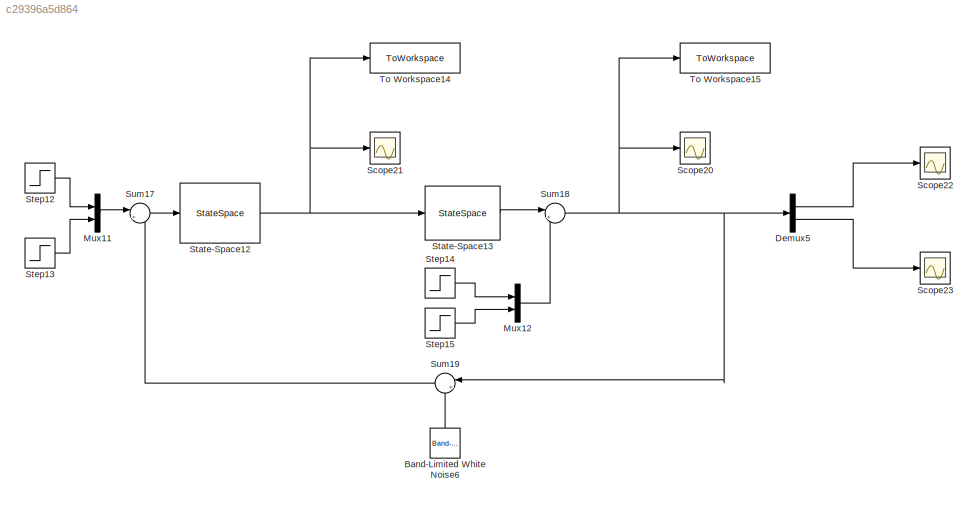
MODEL slx_c29396a5d864
KIND model
CONFIG AbsTol = auto
CONFIG EnableMultiTasking = off
CONFIG FixedStep = auto
CONFIG MaxStep = auto
CONFIG MinStep = auto
CONFIG RelTol = 1e-3
CONFIG SampleTimeConstraint = Unconstrained
CONFIG SolverName = VariableStepAuto
CONFIG StartTime = 0.0
CONFIG StopTime = 50
BLOCK [Reference] Band-Limited White Noise6  REF=simulink/Sources/Band-Limited
White Noise
  NameLocation = right
  SourceBlock = simulink/Sources/Band-Limited\nWhite Noise
  SourceType = Band-Limited White Noise.
BLOCK [Demux] Demux5
  Outputs = 2
BLOCK [Mux] Mux11
  DisplayOption = bar
  Inputs = 2
BLOCK [Mux] Mux12
  DisplayOption = bar
  Inputs = 2
BLOCK [Scope] Scope20
  Floating = off
  NumInputPorts = 1
  ScopeSpecificationString = Simulink.scopes.TimeScopeBlockCfg('CurrentConfiguration', extmgr.ConfigurationSet(extmgr.Configuration('Core','General UI',true),extmgr.Configuration('Core','Source UI',true),extmgr.Configuration('Sources','WiredSimulink',true,'DataLoggingVariableName','ScopeData1'),extmgr.Configuration('Visuals','Time Domain',true,'SerializedDisplays',{struct('MinYLimReal','0.24895','MaxYLimReal','2.75948','YLabe...<+1422ch>
BLOCK [Scope] Scope21
  Floating = off
  NumInputPorts = 1
  ScopeSpecificationString = Simulink.scopes.TimeScopeBlockCfg('CurrentConfiguration', extmgr.ConfigurationSet(extmgr.Configuration('Core','General UI',true),extmgr.Configuration('Core','Source UI',true),extmgr.Configuration('Sources','WiredSimulink',true,'DataLoggingVariableName','ScopeData2'),extmgr.Configuration('Visuals','Time Domain',true,'SerializedDisplays',{struct('MinYLimReal','-9.69458','MaxYLimReal','21.46311','YLa...<+1396ch>
BLOCK [Scope] Scope22
  Floating = off
  NumInputPorts = 1
  ScopeSpecificationString = Simulink.scopes.TimeScopeBlockCfg('CurrentConfiguration', extmgr.ConfigurationSet(extmgr.Configuration('Core','General UI',true),extmgr.Configuration('Core','Source UI',true),extmgr.Configuration('Sources','WiredSimulink',true,'DataLoggingVariableName','ScopeData3'),extmgr.Configuration('Visuals','Time Domain',true,'SerializedDisplays',{struct('MinYLimReal','0.30832','MaxYLimReal','2.22514','YLabe...<+1365ch>
BLOCK [Scope] Scope23
  Floating = off
  NumInputPorts = 1
  ScopeSpecificationString = Simulink.scopes.TimeScopeBlockCfg('CurrentConfiguration', extmgr.ConfigurationSet(extmgr.Configuration('Core','General UI',true),extmgr.Configuration('Core','Source UI',true),extmgr.Configuration('Sources','WiredSimulink',true),extmgr.Configuration('Visuals','Time Domain',true,'SerializedDisplays',{struct('MinYLimReal','2.38569','MaxYLimReal','2.52166','YLabelReal','','MinYLimMag','2.38569','MaxYL...<+1345ch>
BLOCK [StateSpace] State-Space12
  A = Ar
  B = Br
  C = Cr
  D = Dr
  InitialCondition = 0
BLOCK [StateSpace] State-Space13
  A = A
  B = B
  C = C
  D = D
  InitialCondition = 0
BLOCK [Step] Step12
  After = 2
  SampleTime = 0
  Time = 0
BLOCK [Step] Step13
  After = 2.5
  SampleTime = 0
  Time = 0
BLOCK [Step] Step14
  After = 0.5
  SampleTime = 0
  Time = 0
BLOCK [Step] Step15
  After = 0.5
  SampleTime = 0
  Time = 0
BLOCK [Sum] Sum17
  Inputs = |+-
BLOCK [Sum] Sum18
  Inputs = |++
BLOCK [Sum] Sum19
  Inputs = |++
  NameLocation = top
BLOCK [ToWorkspace] To Workspace14
  FixptAsFi = on
  MaxDataPoints = inf
  SampleTime = -1
  SaveFormat = Structure With Time
  VariableName = controlH
BLOCK [ToWorkspace] To Workspace15
  FixptAsFi = on
  MaxDataPoints = inf
  SampleTime = -1
  SaveFormat = Structure With Time
  VariableName = outputH
LINE Band-Limited White Noise6:1 -> Sum19:2
LINE Demux5:1 -> Scope22:1
LINE Demux5:2 -> Scope23:1
LINE Mux11:1 -> Sum17:1
LINE Mux12:1 -> Sum18:2
NET State-Space12:1 -> Scope21:1, State-Space13:1, To Workspace14:1
LINE State-Space13:1 -> Sum18:1
LINE Step12:1 -> Mux11:1
LINE Step13:1 -> Mux11:2
LINE Step14:1 -> Mux12:1
LINE Step15:1 -> Mux12:2
LINE Sum17:1 -> State-Space12:1
NET Sum18:1 -> Demux5:1, Scope20:1, Sum19:1, To Workspace15:1
LINE Sum19:1 -> Sum17:2
note: NET lines group one-source signal fan-out (src -> all destinations, sorted); 1:1 wires keep LINE
